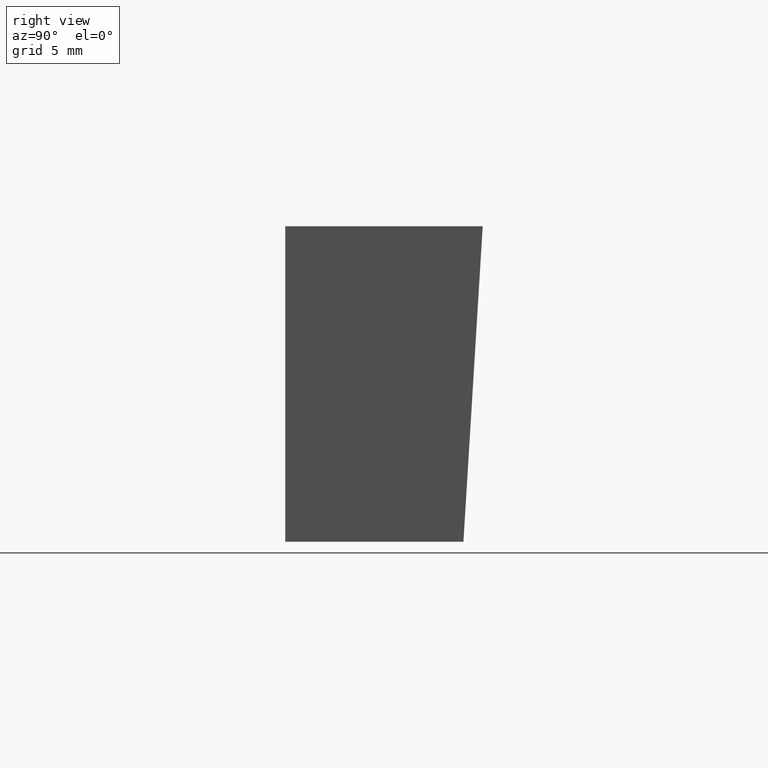
[diagram: clean part render]
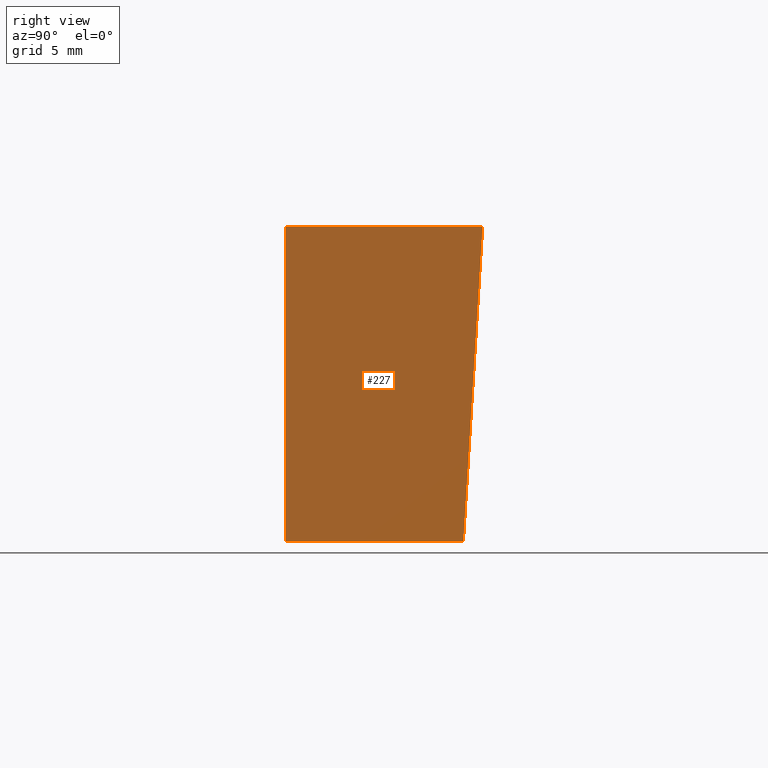
[diagram: same view with one face highlighted and labeled with its STEP entity id]
A machine part, right view. The second image highlights one B-rep face of the part: STEP entity #227.
In plain terms, the highlighted planar face has unit normal (1, 0, -0).
Its self-contained STEP definition (entity closure, byte-faithful):
#3 = VECTOR ( 'NONE', #107, 39.37007874015748100 ) ;
#6 = LINE ( 'NONE', #105, #3 ) ;
#7 = VECTOR ( 'NONE', #101, 39.37007874015748100 ) ;
#8 = LINE ( 'NONE', #99, #7 ) ;
#13 = VECTOR ( 'NONE', #161, 39.37007874015748900 ) ;
#14 = LINE ( 'NONE', #162, #13 ) ;
#62 = VECTOR ( 'NONE', #129, 39.37007874015748100 ) ;
#99 = CARTESIAN_POINT ( 'NONE',  ( 0.7850000000000001400, 0.3937007874015748300, -2.405610610987281500 ) ) ;
#101 = DIRECTION ( 'NONE',  ( -0.0000000000000000000, -0.0000000000000000000, 1.000000000000000000 ) ) ;
#105 = CARTESIAN_POINT ( 'NONE',  ( 0.7849999999999999200, 0.8860000000000000100, -0.7869999999999999200 ) ) ;
#107 = DIRECTION ( 'NONE',  ( -1.541674939991119000E-016, 1.000000000000000000, -0.0000000000000000000 ) ) ;
#129 = DIRECTION ( 'NONE',  ( -1.541674939991119000E-016, 1.000000000000000000, -0.0000000000000000000 ) ) ;
#131 = CARTESIAN_POINT ( 'NONE',  ( 0.7849999999999999200, 0.8860000000000000100, 0.0000000000000000000 ) ) ;
#152 = VERTEX_POINT ( 'NONE', #187 ) ;
#154 = VERTEX_POINT ( 'NONE', #183 ) ;
#161 = DIRECTION ( 'NONE',  ( 0.0000000000000000000, -0.06104853953485694200, -0.9981347984218669200 ) ) ;
#162 = CARTESIAN_POINT ( 'NONE',  ( 0.7849999999999999200, 0.8860000000000000100, 0.0000000000000000000 ) ) ;
#163 = VERTEX_POINT ( 'NONE', #191 ) ;
#165 = CARTESIAN_POINT ( 'NONE',  ( 0.7850000000000001400, 0.3937007874015748300, 0.0000000000000000000 ) ) ;
#180 = DIRECTION ( 'NONE',  ( -1.541674939991119000E-016, 1.000000000000000000, 0.0000000000000000000 ) ) ;
#181 = PLANE ( 'NONE',  #262 ) ;
#183 = CARTESIAN_POINT ( 'NONE',  ( 0.7849999999999999200, 0.8860000000000000100, 0.0000000000000000000 ) ) ;
#187 = CARTESIAN_POINT ( 'NONE',  ( 0.7849999999999999200, 0.8378650179415688700, -0.7869999999999999200 ) ) ;
#191 = CARTESIAN_POINT ( 'NONE',  ( 0.7850000000000001400, 0.3937007874015748300, -0.7870000000000001400 ) ) ;
#204 = DIRECTION ( 'NONE',  ( 1.000000000000000000, 1.541674939991119000E-016, -0.0000000000000000000 ) ) ;
#206 = CARTESIAN_POINT ( 'NONE',  ( 0.7849999999999999200, 0.8860000000000000100, -0.7869999999999999200 ) ) ;
#211 = VERTEX_POINT ( 'NONE', #165 ) ;
#227 = ADVANCED_FACE ( 'NONE', ( #382 ), #181, .T. ) ;
#246 = EDGE_CURVE ( 'NONE', #211, #154, #330, .T. ) ;
#254 = EDGE_CURVE ( 'NONE', #154, #152, #14, .T. ) ;
#257 = EDGE_CURVE ( 'NONE', #163, #211, #8, .T. ) ;
#258 = EDGE_CURVE ( 'NONE', #163, #152, #6, .T. ) ;
#262 = AXIS2_PLACEMENT_3D ( 'NONE', #206, #204, #180 ) ;
#313 = ORIENTED_EDGE ( 'NONE', *, *, #254, .F. ) ;
#330 = LINE ( 'NONE', #131, #62 ) ;
#368 = EDGE_LOOP ( 'NONE', ( #374, #370, #313, #385 ) ) ;
#370 = ORIENTED_EDGE ( 'NONE', *, *, #258, .T. ) ;
#374 = ORIENTED_EDGE ( 'NONE', *, *, #257, .F. ) ;
#382 = FACE_OUTER_BOUND ( 'NONE', #368, .T. ) ;
#385 = ORIENTED_EDGE ( 'NONE', *, *, #246, .F. ) ;